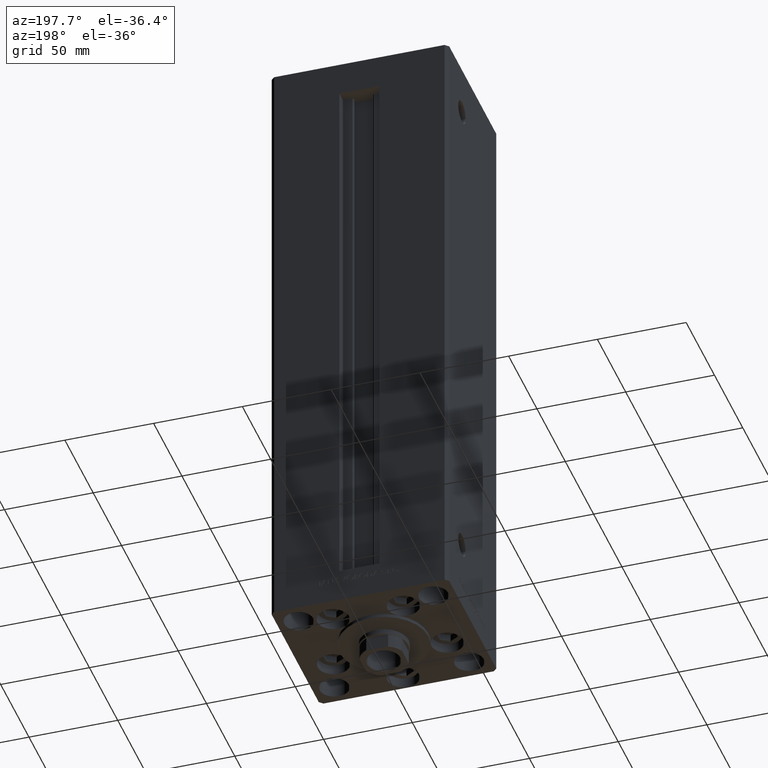
[diagram: clean part render]
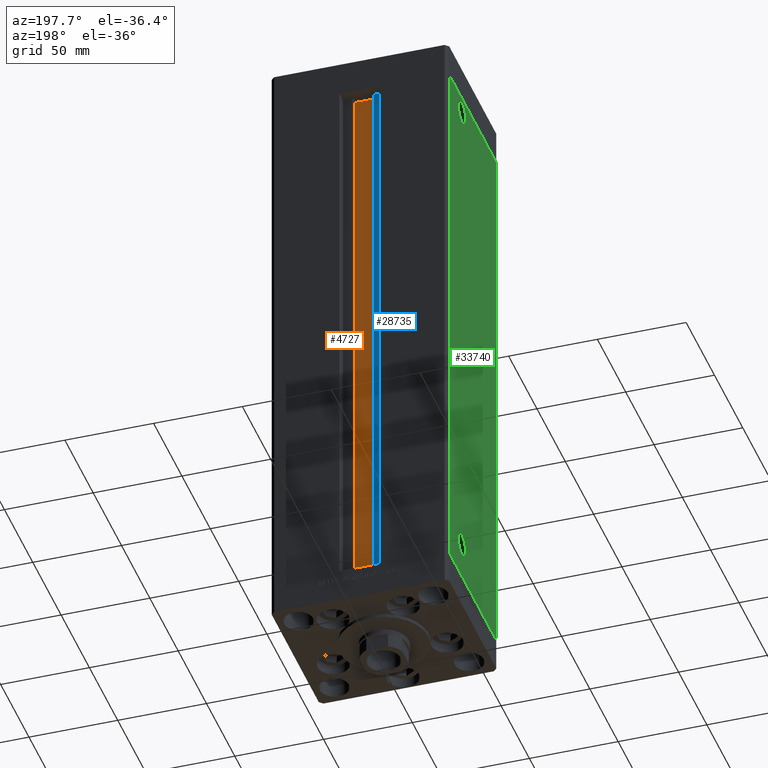
[diagram: same view with three faces highlighted in distinct colors, each labeled with its STEP entity id]
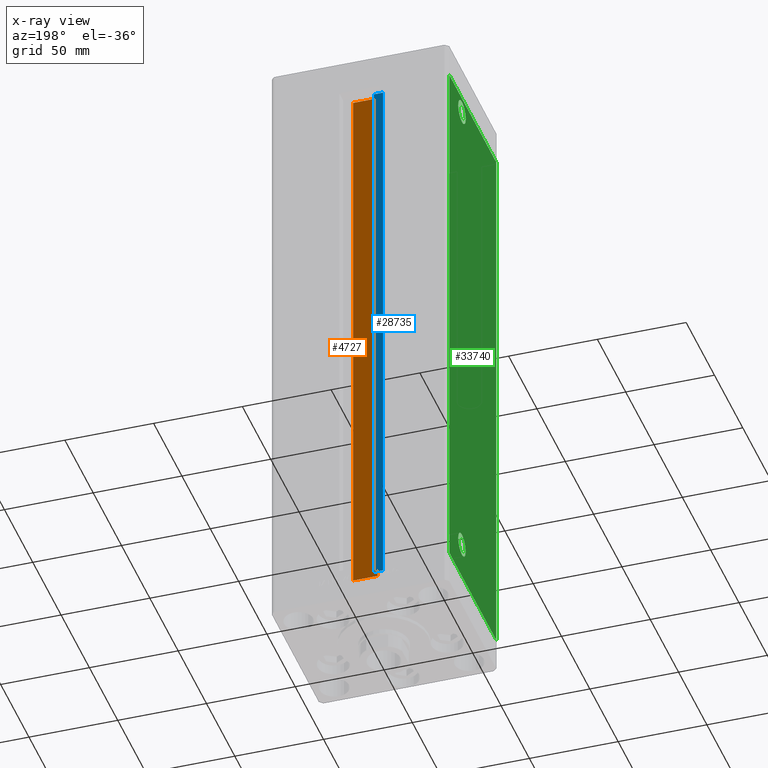
[diagram: x-ray of the same camera — body ghosted, the three highlighted faces saturated]
A machine part, auxiliary view with three faces highlighted in distinct colors.
The next image is the same camera in x-ray (body ghosted, the three faces saturated) — at least one of them is partly hidden behind the body in this view.
Their STEP definitions:

[orange] entity #4727 — the highlighted planar face has unit normal (0, -1, 0).
#1468 = EDGE_CURVE ( 'NONE', #11759, #39335, #35445, .T. ) ;
#1651 = CARTESIAN_POINT ( 'NONE',  ( -6.876153656360465050, 32.99999999999986500, 0.000000000000000000 ) ) ;
#3662 = AXIS2_PLACEMENT_3D ( 'NONE', #34885, #42729, #11620 ) ;
#3823 = DIRECTION ( 'NONE',  ( 1.000000000000000000, -0.000000000000000000, -0.000000000000000000 ) ) ;
#4335 = CARTESIAN_POINT ( 'NONE',  ( 6.876153656360465050, 32.99999999999986500, 0.000000000000000000 ) ) ;
#4727 = ADVANCED_FACE ( 'NONE', ( #34380 ), #15898, .F. ) ;
#5340 = CARTESIAN_POINT ( 'NONE',  ( 6.876153656360465050, 32.99999999999986500, 0.000000000000000000 ) ) ;
#7192 = CARTESIAN_POINT ( 'NONE',  ( 0.000000000000000000, 32.99999999999986500, 318.5000000000000000 ) ) ;
#9918 = VECTOR ( 'NONE', #19745, 1000.000000000000000 ) ;
#11620 = DIRECTION ( 'NONE',  ( 0.000000000000000000, 0.000000000000000000, -1.000000000000000000 ) ) ;
#11759 = VERTEX_POINT ( 'NONE', #5340 ) ;
#11820 = CARTESIAN_POINT ( 'NONE',  ( -6.876153656360465050, 32.99999999999986500, 0.000000000000000000 ) ) ;
#12675 = VECTOR ( 'NONE', #3823, 1000.000000000000000 ) ;
#12943 = CARTESIAN_POINT ( 'NONE',  ( -6.876153656360465050, 32.99999999999986500, 318.5000000000000000 ) ) ;
#13313 = LINE ( 'NONE', #1651, #39479 ) ;
#15280 = LINE ( 'NONE', #7192, #28155 ) ;
#15898 = PLANE ( 'NONE',  #3662 ) ;
#17529 = EDGE_LOOP ( 'NONE', ( #47436, #33053, #27443, #42568 ) ) ;
#17827 = DIRECTION ( 'NONE',  ( -0.000000000000000000, -0.000000000000000000, 1.000000000000000000 ) ) ;
#18756 = LINE ( 'NONE', #4335, #12675 ) ;
#19745 = DIRECTION ( 'NONE',  ( -0.000000000000000000, -0.000000000000000000, 1.000000000000000000 ) ) ;
#25468 = VERTEX_POINT ( 'NONE', #12943 ) ;
#27443 = ORIENTED_EDGE ( 'NONE', *, *, #39425, .T. ) ;
#28155 = VECTOR ( 'NONE', #41608, 1000.000000000000000 ) ;
#31221 = EDGE_CURVE ( 'NONE', #43654, #11759, #18756, .T. ) ;
#33053 = ORIENTED_EDGE ( 'NONE', *, *, #31221, .F. ) ;
#34380 = FACE_OUTER_BOUND ( 'NONE', #17529, .T. ) ;
#34885 = CARTESIAN_POINT ( 'NONE',  ( 6.876153656360465050, 32.99999999999986500, 0.000000000000000000 ) ) ;
#35445 = LINE ( 'NONE', #35752, #9918 ) ;
#35752 = CARTESIAN_POINT ( 'NONE',  ( 6.876153656360465050, 32.99999999999986500, 0.000000000000000000 ) ) ;
#39335 = VERTEX_POINT ( 'NONE', #41669 ) ;
#39425 = EDGE_CURVE ( 'NONE', #43654, #25468, #13313, .T. ) ;
#39479 = VECTOR ( 'NONE', #17827, 1000.000000000000000 ) ;
#39594 = EDGE_CURVE ( 'NONE', #39335, #25468, #15280, .T. ) ;
#41608 = DIRECTION ( 'NONE',  ( -1.000000000000000000, 0.000000000000000000, 0.000000000000000000 ) ) ;
#41669 = CARTESIAN_POINT ( 'NONE',  ( 6.876153656360465050, 32.99999999999986500, 318.5000000000000000 ) ) ;
#42568 = ORIENTED_EDGE ( 'NONE', *, *, #39594, .F. ) ;
#42729 = DIRECTION ( 'NONE',  ( 0.000000000000000000, -1.000000000000000000, -0.000000000000000000 ) ) ;
#43654 = VERTEX_POINT ( 'NONE', #11820 ) ;
#47436 = ORIENTED_EDGE ( 'NONE', *, *, #1468, .F. ) ;

[blue] entity #28735 — the highlighted planar face has unit normal (0, -1, 0).
#1532 = EDGE_CURVE ( 'NONE', #18338, #36065, #47095, .T. ) ;
#2314 = VECTOR ( 'NONE', #14467, 1000.000000000000000 ) ;
#2658 = ORIENTED_EDGE ( 'NONE', *, *, #34160, .T. ) ;
#2752 = ORIENTED_EDGE ( 'NONE', *, *, #39821, .F. ) ;
#8570 = CARTESIAN_POINT ( 'NONE',  ( -11.24999999999999822, 36.99999999999999289, 318.5000000000000000 ) ) ;
#13513 = DIRECTION ( 'NONE',  ( -1.000000000000000000, 0.000000000000000000, 0.000000000000000000 ) ) ;
#13522 = ORIENTED_EDGE ( 'NONE', *, *, #31872, .F. ) ;
#14467 = DIRECTION ( 'NONE',  ( -0.000000000000000000, -0.000000000000000000, 1.000000000000000000 ) ) ;
#15259 = ORIENTED_EDGE ( 'NONE', *, *, #1532, .F. ) ;
#16526 = LINE ( 'NONE', #31951, #31333 ) ;
#18338 = VERTEX_POINT ( 'NONE', #49158 ) ;
#19084 = CARTESIAN_POINT ( 'NONE',  ( -6.183333333333997928, 36.99999999999999289, 0.000000000000000000 ) ) ;
#20570 = DIRECTION ( 'NONE',  ( -0.000000000000000000, -0.000000000000000000, 1.000000000000000000 ) ) ;
#20659 = VERTEX_POINT ( 'NONE', #8570 ) ;
#22806 = VECTOR ( 'NONE', #31888, 1000.000000000000000 ) ;
#26110 = CARTESIAN_POINT ( 'NONE',  ( -6.183333333333997928, 36.99999999999999289, 0.000000000000000000 ) ) ;
#28735 = ADVANCED_FACE ( 'NONE', ( #39111 ), #47889, .F. ) ;
#29049 = CARTESIAN_POINT ( 'NONE',  ( -6.183333333333997928, 36.99999999999999289, 318.5000000000000000 ) ) ;
#31333 = VECTOR ( 'NONE', #20570, 1000.000000000000000 ) ;
#31872 = EDGE_CURVE ( 'NONE', #39159, #20659, #43643, .T. ) ;
#31888 = DIRECTION ( 'NONE',  ( 1.000000000000000000, -0.000000000000000000, -0.000000000000000000 ) ) ;
#31951 = CARTESIAN_POINT ( 'NONE',  ( -11.24999999999999822, 36.99999999999999289, 0.000000000000000000 ) ) ;
#32654 = CARTESIAN_POINT ( 'NONE',  ( -6.183333333333997928, 36.99999999999999289, 0.000000000000000000 ) ) ;
#34160 = EDGE_CURVE ( 'NONE', #18338, #20659, #16526, .T. ) ;
#34477 = VECTOR ( 'NONE', #13513, 1000.000000000000000 ) ;
#35298 = CARTESIAN_POINT ( 'NONE',  ( -6.183333333333997928, 36.99999999999999289, 0.000000000000000000 ) ) ;
#35795 = AXIS2_PLACEMENT_3D ( 'NONE', #35298, #48129, #39348 ) ;
#36065 = VERTEX_POINT ( 'NONE', #19084 ) ;
#39111 = FACE_OUTER_BOUND ( 'NONE', #41390, .T. ) ;
#39159 = VERTEX_POINT ( 'NONE', #29049 ) ;
#39348 = DIRECTION ( 'NONE',  ( 0.000000000000000000, 0.000000000000000000, -1.000000000000000000 ) ) ;
#39821 = EDGE_CURVE ( 'NONE', #36065, #39159, #41784, .T. ) ;
#41390 = EDGE_LOOP ( 'NONE', ( #2752, #15259, #2658, #13522 ) ) ;
#41784 = LINE ( 'NONE', #26110, #2314 ) ;
#43643 = LINE ( 'NONE', #47934, #34477 ) ;
#47095 = LINE ( 'NONE', #32654, #22806 ) ;
#47889 = PLANE ( 'NONE',  #35795 ) ;
#47934 = CARTESIAN_POINT ( 'NONE',  ( 0.000000000000000000, 36.99999999999999289, 318.5000000000000000 ) ) ;
#48129 = DIRECTION ( 'NONE',  ( 0.000000000000000000, -1.000000000000000000, -0.000000000000000000 ) ) ;
#49158 = CARTESIAN_POINT ( 'NONE',  ( -11.24999999999999822, 36.99999999999999289, 0.000000000000000000 ) ) ;

[green] entity #33740 — the highlighted planar face has unit normal (1, 0, 0).
#625 = FACE_OUTER_BOUND ( 'NONE', #22460, .T. ) ;
#1855 = VECTOR ( 'NONE', #50084, 1000.000000000000000 ) ;
#2264 = DIRECTION ( 'NONE',  ( 0.000000000000000000, -1.000000000000000000, 0.000000000000000000 ) ) ;
#2652 = VERTEX_POINT ( 'NONE', #13544 ) ;
#4226 = EDGE_LOOP ( 'NONE', ( #13331, #16869 ) ) ;
#5327 = EDGE_CURVE ( 'NONE', #5911, #2652, #18244, .T. ) ;
#5911 = VERTEX_POINT ( 'NONE', #13810 ) ;
#6355 = AXIS2_PLACEMENT_3D ( 'NONE', #16976, #13683, #2264 ) ;
#7112 = CARTESIAN_POINT ( 'NONE',  ( -50.00000000000000711, 18.99999999999997158, 21.00000000000001776 ) ) ;
#8942 = CARTESIAN_POINT ( 'NONE',  ( -50.00000000000001421, 41.49999999999999289, 318.5000000000000000 ) ) ;
#9058 = DIRECTION ( 'NONE',  ( 3.344045254895050973E-16, -1.000000000000000000, 0.000000000000000000 ) ) ;
#9072 = AXIS2_PLACEMENT_3D ( 'NONE', #7112, #26334, #18989 ) ;
#10933 = CARTESIAN_POINT ( 'NONE',  ( -49.99999999999998579, -41.49999999999999289, 318.5000000000000000 ) ) ;
#11648 = EDGE_CURVE ( 'NONE', #37642, #23080, #33837, .T. ) ;
#12406 = ORIENTED_EDGE ( 'NONE', *, *, #11648, .F. ) ;
#13331 = ORIENTED_EDGE ( 'NONE', *, *, #5327, .F. ) ;
#13449 = VERTEX_POINT ( 'NONE', #10933 ) ;
#13544 = CARTESIAN_POINT ( 'NONE',  ( -50.00000000000000711, 25.57999999999997343, 21.00000000000001776 ) ) ;
#13683 = DIRECTION ( 'NONE',  ( -1.000000000000000000, -2.275047181608927644E-16, 0.000000000000000000 ) ) ;
#13810 = CARTESIAN_POINT ( 'NONE',  ( -50.00000000000000711, 12.41999999999996973, 21.00000000000001776 ) ) ;
#14655 = DIRECTION ( 'NONE',  ( -1.000000000000000000, -2.275047181608927644E-16, 0.000000000000000000 ) ) ;
#16866 = ORIENTED_EDGE ( 'NONE', *, *, #32578, .F. ) ;
#16869 = ORIENTED_EDGE ( 'NONE', *, *, #48045, .F. ) ;
#16976 = CARTESIAN_POINT ( 'NONE',  ( -50.00000000000000711, 19.00000000000000000, 309.5000000000000000 ) ) ;
#17009 = CARTESIAN_POINT ( 'NONE',  ( -50.00000000000001421, 41.49999999999999289, 0.000000000000000000 ) ) ;
#18244 = CIRCLE ( 'NONE', #19047, 6.580000000000002736 ) ;
#18713 = CARTESIAN_POINT ( 'NONE',  ( -50.00000000000000711, 12.41999999999995552, 309.5000000000000000 ) ) ;
#18989 = DIRECTION ( 'NONE',  ( 0.000000000000000000, -1.000000000000000000, 0.000000000000000000 ) ) ;
#19047 = AXIS2_PLACEMENT_3D ( 'NONE', #33887, #14655, #45775 ) ;
#19431 = DIRECTION ( 'NONE',  ( -0.000000000000000000, -0.000000000000000000, -1.000000000000000000 ) ) ;
#20130 = DIRECTION ( 'NONE',  ( -3.344045254895050480E-16, 1.000000000000000000, 0.000000000000000000 ) ) ;
#20376 = FACE_BOUND ( 'NONE', #47190, .T. ) ;
#20431 = AXIS2_PLACEMENT_3D ( 'NONE', #32866, #44272, #45001 ) ;
#21656 = ORIENTED_EDGE ( 'NONE', *, *, #49815, .F. ) ;
#22135 = ORIENTED_EDGE ( 'NONE', *, *, #26435, .T. ) ;
#22460 = EDGE_LOOP ( 'NONE', ( #36681, #16866, #48376, #22135 ) ) ;
#22461 = CARTESIAN_POINT ( 'NONE',  ( -49.99999999999998579, -41.49999999999999289, 318.5000000000000000 ) ) ;
#22684 = CARTESIAN_POINT ( 'NONE',  ( -49.99999999999998579, -41.49999999999999289, 0.000000000000000000 ) ) ;
#23080 = VERTEX_POINT ( 'NONE', #18713 ) ;
#25945 = VERTEX_POINT ( 'NONE', #22684 ) ;
#26334 = DIRECTION ( 'NONE',  ( -1.000000000000000000, -2.275047181608927644E-16, 0.000000000000000000 ) ) ;
#26435 = EDGE_CURVE ( 'NONE', #47830, #39604, #34627, .T. ) ;
#28404 = LINE ( 'NONE', #17009, #35394 ) ;
#28480 = FACE_BOUND ( 'NONE', #4226, .T. ) ;
#29023 = LINE ( 'NONE', #36375, #42093 ) ;
#32578 = EDGE_CURVE ( 'NONE', #13449, #25945, #38420, .T. ) ;
#32866 = CARTESIAN_POINT ( 'NONE',  ( -50.00000000000000711, 19.00000000000000000, 309.5000000000000000 ) ) ;
#33740 = ADVANCED_FACE ( 'NONE', ( #28480, #20376, #625 ), #39127, .F. ) ;
#33837 = CIRCLE ( 'NONE', #6355, 6.580000000000044480 ) ;
#33887 = CARTESIAN_POINT ( 'NONE',  ( -50.00000000000000711, 18.99999999999997158, 21.00000000000001776 ) ) ;
#34554 = AXIS2_PLACEMENT_3D ( 'NONE', #47458, #39368, #20130 ) ;
#34627 = LINE ( 'NONE', #41973, #1855 ) ;
#34812 = CARTESIAN_POINT ( 'NONE',  ( -50.00000000000000711, 25.58000000000004448, 309.5000000000000000 ) ) ;
#35017 = CARTESIAN_POINT ( 'NONE',  ( -50.00000000000001421, 41.49999999999999289, 0.000000000000000000 ) ) ;
#35394 = VECTOR ( 'NONE', #40053, 1000.000000000000000 ) ;
#36375 = CARTESIAN_POINT ( 'NONE',  ( -50.00000000000001421, 41.49999999999999289, 318.5000000000000000 ) ) ;
#36681 = ORIENTED_EDGE ( 'NONE', *, *, #37795, .T. ) ;
#37642 = VERTEX_POINT ( 'NONE', #34812 ) ;
#37795 = EDGE_CURVE ( 'NONE', #39604, #25945, #28404, .T. ) ;
#38420 = LINE ( 'NONE', #22461, #38568 ) ;
#38568 = VECTOR ( 'NONE', #19431, 1000.000000000000000 ) ;
#39127 = PLANE ( 'NONE',  #34554 ) ;
#39368 = DIRECTION ( 'NONE',  ( 1.000000000000000000, 3.344045254895050480E-16, -0.000000000000000000 ) ) ;
#39604 = VERTEX_POINT ( 'NONE', #35017 ) ;
#39771 = CIRCLE ( 'NONE', #9072, 6.580000000000002736 ) ;
#39846 = CIRCLE ( 'NONE', #20431, 6.580000000000044480 ) ;
#40053 = DIRECTION ( 'NONE',  ( 3.344045254895050973E-16, -1.000000000000000000, 0.000000000000000000 ) ) ;
#41973 = CARTESIAN_POINT ( 'NONE',  ( -50.00000000000001421, 41.49999999999999289, 318.5000000000000000 ) ) ;
#42093 = VECTOR ( 'NONE', #9058, 1000.000000000000000 ) ;
#44272 = DIRECTION ( 'NONE',  ( -1.000000000000000000, -2.275047181608927644E-16, 0.000000000000000000 ) ) ;
#45001 = DIRECTION ( 'NONE',  ( 0.000000000000000000, -1.000000000000000000, 0.000000000000000000 ) ) ;
#45775 = DIRECTION ( 'NONE',  ( 0.000000000000000000, -1.000000000000000000, 0.000000000000000000 ) ) ;
#46089 = EDGE_CURVE ( 'NONE', #47830, #13449, #29023, .T. ) ;
#47190 = EDGE_LOOP ( 'NONE', ( #21656, #12406 ) ) ;
#47458 = CARTESIAN_POINT ( 'NONE',  ( -50.00000000000001421, 41.49999999999999289, 318.5000000000000000 ) ) ;
#47830 = VERTEX_POINT ( 'NONE', #8942 ) ;
#48045 = EDGE_CURVE ( 'NONE', #2652, #5911, #39771, .T. ) ;
#48376 = ORIENTED_EDGE ( 'NONE', *, *, #46089, .F. ) ;
#49815 = EDGE_CURVE ( 'NONE', #23080, #37642, #39846, .T. ) ;
#50084 = DIRECTION ( 'NONE',  ( -0.000000000000000000, -0.000000000000000000, -1.000000000000000000 ) ) ;